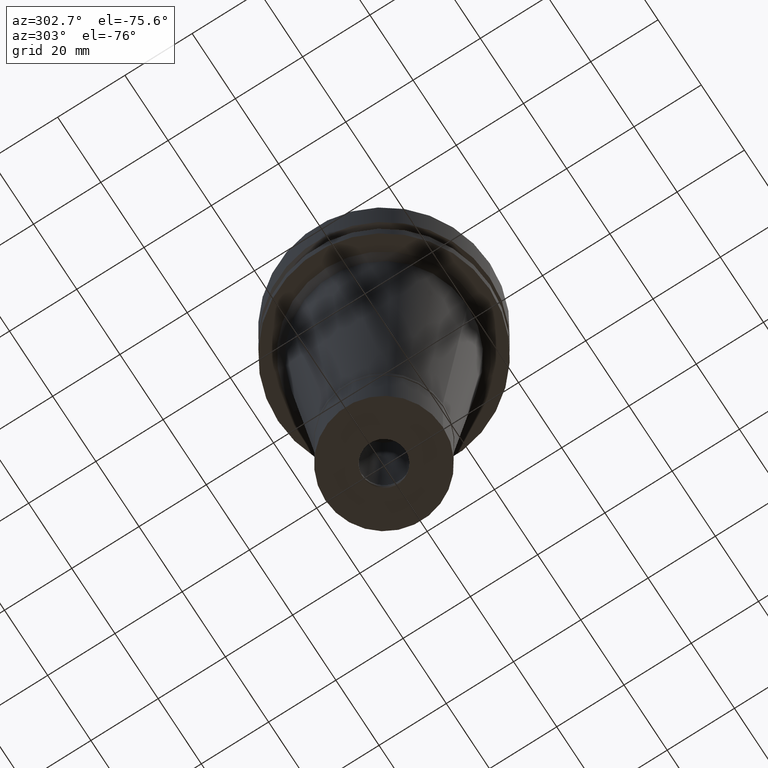
[diagram: clean part render]
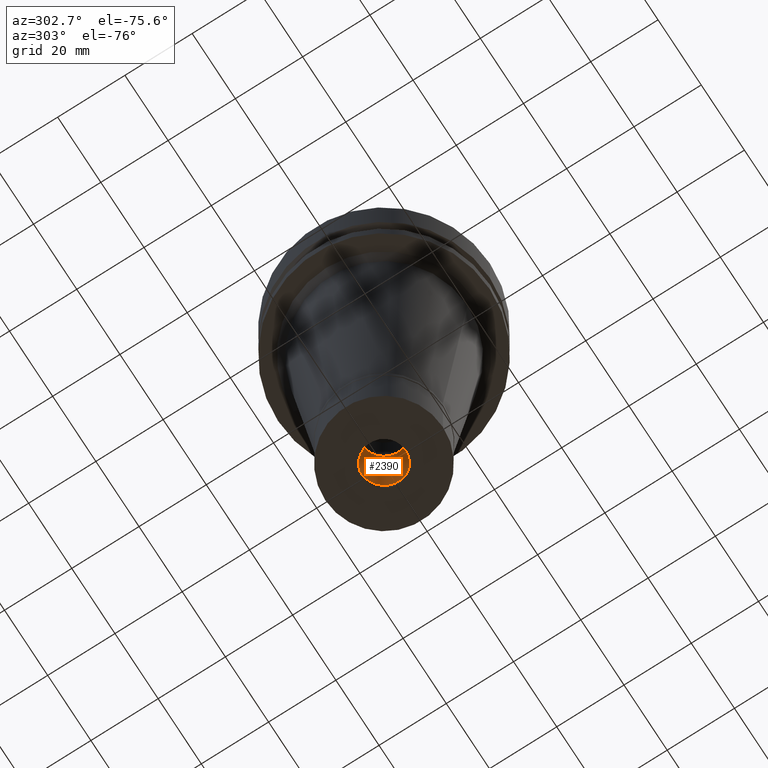
[diagram: same view with one face highlighted and labeled with its STEP entity id]
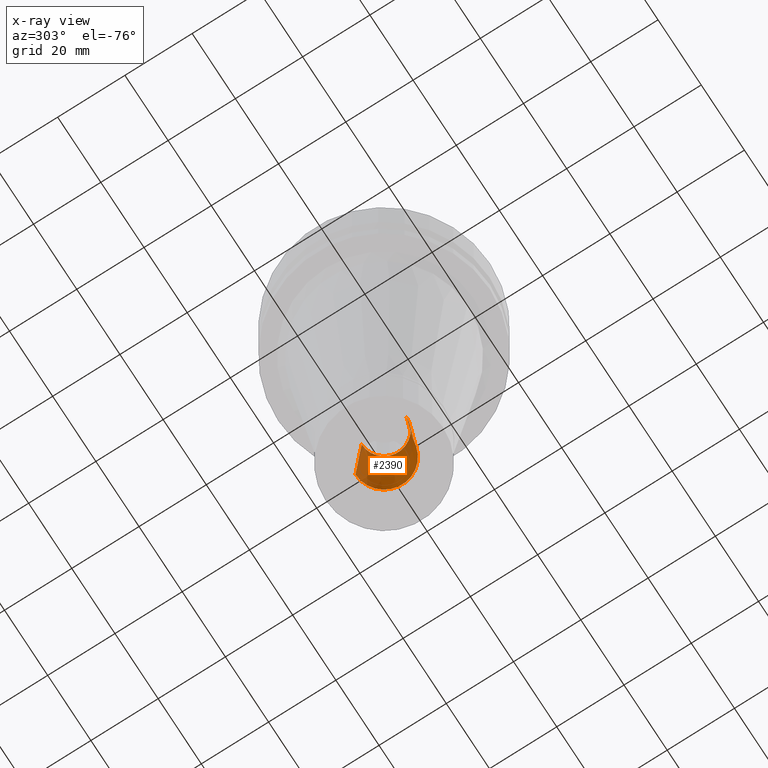
[diagram: x-ray of the same camera — body ghosted, the highlighted face saturated]
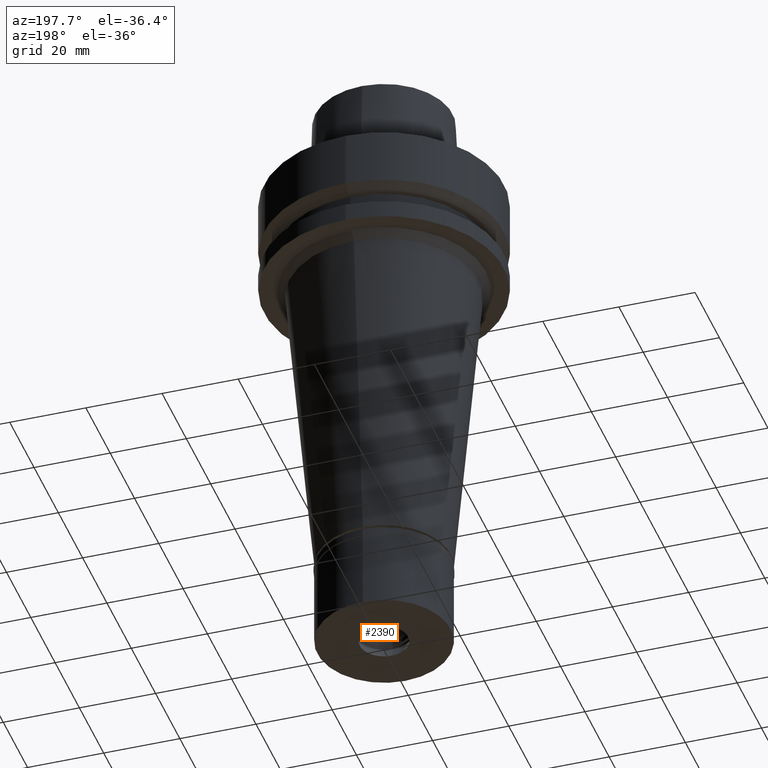
[diagram: same view with one face highlighted and labeled with its STEP entity id]
A machine part, auxiliary view. The second image highlights one B-rep face of the part: STEP entity #2390.
The next image is the same camera in x-ray: the body ghosted, the highlighted face saturated — about 7% of this face is hidden behind the body in this view.
A second angle (auxiliary view) of the same face is appended — the face is thin or edge-on in the first view.
In plain terms, the highlighted conical surface has half-angle 4 deg.
Its self-contained STEP definition (entity closure, byte-faithful):
#44 = CIRCLE ( 'NONE', #748, 8.500000000003000267 ) ;
#84 = AXIS2_PLACEMENT_3D ( 'NONE', #1544, #1514, #2833 ) ;
#143 = DIRECTION ( 'NONE',  ( 0.0000000000000000000, 0.0000000000000000000, -1.000000000000000000 ) ) ;
#170 = EDGE_CURVE ( 'NONE', #981, #2071, #393, .T. ) ;
#236 = CARTESIAN_POINT ( 'NONE',  ( 0.0000000000000000000, 0.0000000000000000000, -128.3000000000000114 ) ) ;
#307 = ORIENTED_EDGE ( 'NONE', *, *, #1831, .T. ) ;
#329 = AXIS2_PLACEMENT_3D ( 'NONE', #2183, #2577, #1954 ) ;
#349 = ORIENTED_EDGE ( 'NONE', *, *, #170, .T. ) ;
#393 = LINE ( 'NONE', #1277, #1399 ) ;
#466 = CARTESIAN_POINT ( 'NONE',  ( 0.0000000000000000000, -8.500000000003000267, -128.3000000000000114 ) ) ;
#537 = VERTEX_POINT ( 'NONE', #2645 ) ;
#633 = CONICAL_SURFACE ( 'NONE', #84, 7.575000000003000444, 0.06981317007975955391 ) ;
#748 = AXIS2_PLACEMENT_3D ( 'NONE', #236, #143, #887 ) ;
#854 = ORIENTED_EDGE ( 'NONE', *, *, #1003, .F. ) ;
#887 = DIRECTION ( 'NONE',  ( 0.0000000000000000000, 1.000000000000000000, 0.0000000000000000000 ) ) ;
#981 = VERTEX_POINT ( 'NONE', #466 ) ;
#1003 = EDGE_CURVE ( 'NONE', #537, #2381, #2212, .T. ) ;
#1082 = ORIENTED_EDGE ( 'NONE', *, *, #1524, .F. ) ;
#1150 = DIRECTION ( 'NONE',  ( 0.0000000000000000000, -0.06975647374417148772, 0.9975640502598209780 ) ) ;
#1277 = CARTESIAN_POINT ( 'NONE',  ( 0.0000000000000000000, -8.500000000002000178, -128.3000000000000114 ) ) ;
#1362 = FACE_OUTER_BOUND ( 'NONE', #2703, .T. ) ;
#1399 = VECTOR ( 'NONE', #2600, 1000.000000000000114 ) ;
#1514 = DIRECTION ( 'NONE',  ( 0.0000000000000000000, 0.0000000000000000000, -1.000000000000000000 ) ) ;
#1524 = EDGE_CURVE ( 'NONE', #2381, #2071, #2165, .T. ) ;
#1544 = CARTESIAN_POINT ( 'NONE',  ( 0.0000000000000000000, 0.0000000000000000000, -115.0718837124999965 ) ) ;
#1773 = CARTESIAN_POINT ( 'NONE',  ( 0.0000000000000000000, 8.500000000002000178, -128.3000000000000114 ) ) ;
#1831 = EDGE_CURVE ( 'NONE', #537, #981, #44, .T. ) ;
#1904 = CARTESIAN_POINT ( 'NONE',  ( 0.0000000000000000000, -6.650000000001999645, -101.8437674250999976 ) ) ;
#1927 = VECTOR ( 'NONE', #1150, 1000.000000000000114 ) ;
#1954 = DIRECTION ( 'NONE',  ( 0.0000000000000000000, 1.000000000000000000, 0.0000000000000000000 ) ) ;
#2071 = VERTEX_POINT ( 'NONE', #1904 ) ;
#2165 = CIRCLE ( 'NONE', #329, 6.650000000003999823 ) ;
#2183 = CARTESIAN_POINT ( 'NONE',  ( 0.0000000000000000000, 0.0000000000000000000, -101.8437674250999976 ) ) ;
#2212 = LINE ( 'NONE', #1773, #1927 ) ;
#2228 = CARTESIAN_POINT ( 'NONE',  ( 0.0000000000000000000, 6.650000000001999645, -101.8437674250999976 ) ) ;
#2381 = VERTEX_POINT ( 'NONE', #2228 ) ;
#2390 = ADVANCED_FACE ( 'NONE', ( #1362 ), #633, .F. ) ;
#2577 = DIRECTION ( 'NONE',  ( 0.0000000000000000000, 0.0000000000000000000, -1.000000000000000000 ) ) ;
#2600 = DIRECTION ( 'NONE',  ( 0.0000000000000000000, 0.06975647374417148772, 0.9975640502598209780 ) ) ;
#2645 = CARTESIAN_POINT ( 'NONE',  ( 0.0000000000000000000, 8.500000000003000267, -128.3000000000000114 ) ) ;
#2703 = EDGE_LOOP ( 'NONE', ( #307, #349, #1082, #854 ) ) ;
#2833 = DIRECTION ( 'NONE',  ( 0.0000000000000000000, -1.000000000000000000, 0.0000000000000000000 ) ) ;